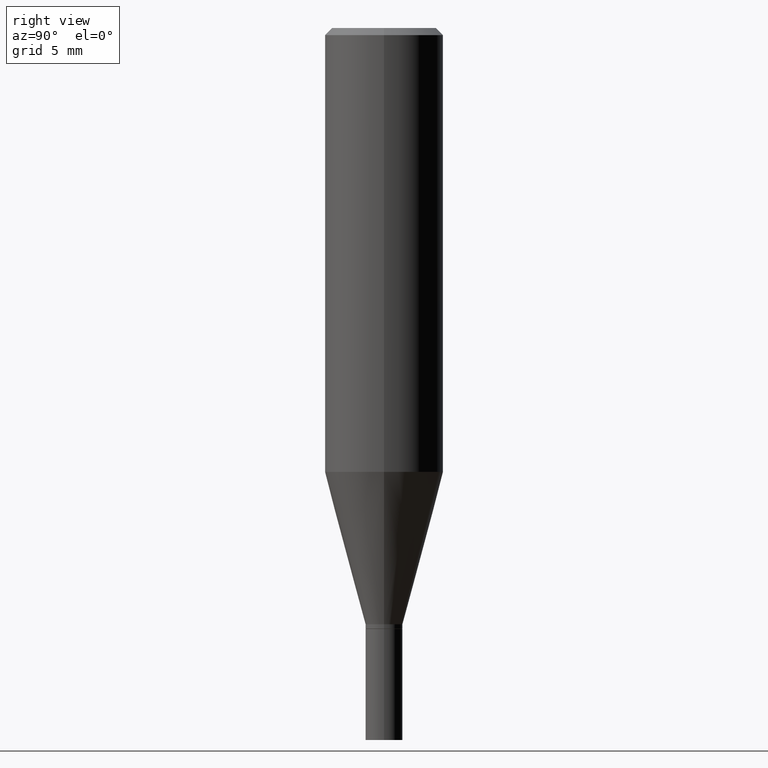
[diagram: clean part render]
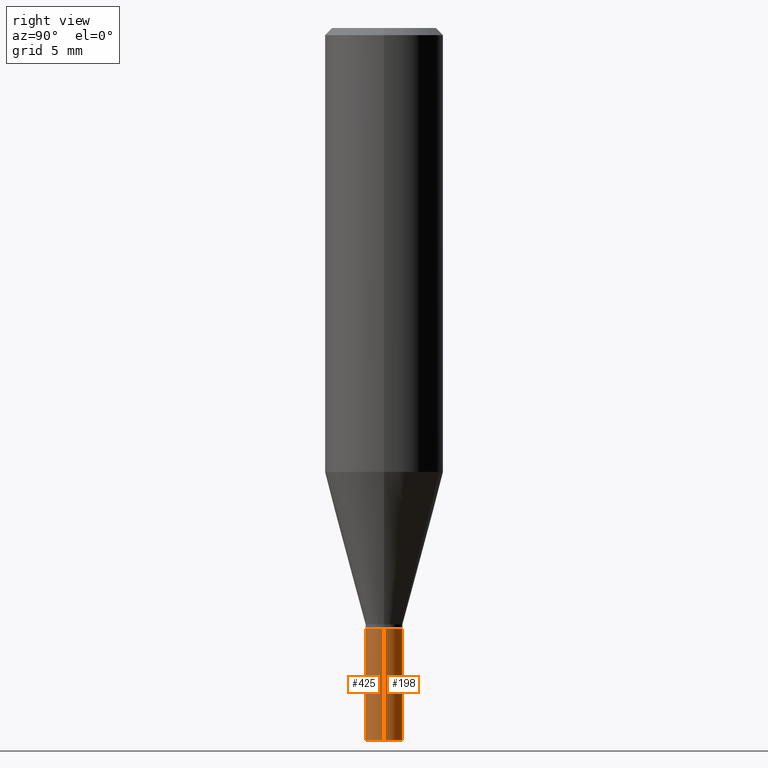
[diagram: same view with one multi-face feature highlighted, each face labeled with its STEP entity id]
A machine part, right view. The highlighted faces form ONE feature: a constant-radius fillet chain: 2 tangent blend faces with common blend radius 0.9919 mm. The faces share edges in the B-rep.
Their STEP definitions:
[1] entity #198 (Cylinder):
#5 = CARTESIAN_POINT ( 'NONE',  ( -0.03905000000000000138, -4.551251753305752024E-15, -1.500000000000000222 ) ) ;
#15 = DIRECTION ( 'NONE',  ( -2.445468806185136877E-29, 3.491481338843145188E-15, 1.000000000000000000 ) ) ;
#21 = VERTEX_POINT ( 'NONE', #78 ) ;
#42 = LINE ( 'NONE', #327, #53 ) ;
#52 = CARTESIAN_POINT ( 'NONE',  ( 0.03905000000000000138, -2.726846925636487182E-16, 1.904147030948312851E-30 ) ) ;
#53 = VECTOR ( 'NONE', #291, 39.37007874015748143 ) ;
#57 = DIRECTION ( 'NONE',  ( 1.000000000000000000, -6.982962677686266711E-15, 0.000000000000000000 ) ) ;
#66 = DIRECTION ( 'NONE',  ( -2.445468806185136597E-29, 3.491481338843145583E-15, 1.000000000000000000 ) ) ;
#78 = CARTESIAN_POINT ( 'NONE',  ( -0.03905000000000000138, -4.551251753305752024E-15, -1.266000000000000014 ) ) ;
#79 = EDGE_CURVE ( 'NONE', #159, #461, #249, .T. ) ;
#109 = CARTESIAN_POINT ( 'NONE',  ( 0.000000000000000000, 0.000000000000000000, 0.000000000000000000 ) ) ;
#120 = VERTEX_POINT ( 'NONE', #351 ) ;
#122 = CARTESIAN_POINT ( 'NONE',  ( 3.095963508630383106E-29, -4.420215374975422163E-15, -1.266000000000000014 ) ) ;
#125 = ORIENTED_EDGE ( 'NONE', *, *, #346, .F. ) ;
#154 = LINE ( 'NONE', #52, #250 ) ;
#159 = VERTEX_POINT ( 'NONE', #217 ) ;
#176 = DIRECTION ( 'NONE',  ( 1.000000000000000000, -6.982962677686266711E-15, 4.876176775795935232E-29 ) ) ;
#193 = ORIENTED_EDGE ( 'NONE', *, *, #398, .T. ) ;
#198 = ADVANCED_FACE ( 'NONE', ( #395 ), #322, .T. ) ;
#202 = DIRECTION ( 'NONE',  ( 1.000000000000000000, -6.982962677686266711E-15, 0.000000000000000000 ) ) ;
#217 = CARTESIAN_POINT ( 'NONE',  ( 0.03905000000000000138, -5.509906700828367289E-15, -1.500000000000000222 ) ) ;
#249 = CIRCLE ( 'NONE', #334, 0.03905000000000000138 ) ;
#250 = VECTOR ( 'NONE', #15, 39.37007874015748143 ) ;
#273 = AXIS2_PLACEMENT_3D ( 'NONE', #122, #329, #57 ) ;
#291 = DIRECTION ( 'NONE',  ( -2.445468806185136877E-29, 3.491481338843145188E-15, 1.000000000000000000 ) ) ;
#311 = EDGE_LOOP ( 'NONE', ( #320, #193, #125, #413 ) ) ;
#320 = ORIENTED_EDGE ( 'NONE', *, *, #79, .T. ) ;
#322 = CYLINDRICAL_SURFACE ( 'NONE', #444, 0.03905000000000000138 ) ;
#326 = CIRCLE ( 'NONE', #273, 0.03905000000000000138 ) ;
#327 = CARTESIAN_POINT ( 'NONE',  ( -0.03905000000000000138, 2.774669383143191324E-16, -1.920844152744540637E-30 ) ) ;
#329 = DIRECTION ( 'NONE',  ( -2.445468806185136597E-29, 3.491481338843145583E-15, 1.000000000000000000 ) ) ;
#332 = EDGE_CURVE ( 'NONE', #159, #120, #154, .T. ) ;
#334 = AXIS2_PLACEMENT_3D ( 'NONE', #419, #451, #202 ) ;
#346 = EDGE_CURVE ( 'NONE', #120, #21, #326, .T. ) ;
#351 = CARTESIAN_POINT ( 'NONE',  ( 0.03905000000000000138, -4.692900067539071276E-15, -1.266000000000000014 ) ) ;
#395 = FACE_OUTER_BOUND ( 'NONE', #311, .T. ) ;
#398 = EDGE_CURVE ( 'NONE', #461, #21, #42, .T. ) ;
#413 = ORIENTED_EDGE ( 'NONE', *, *, #332, .F. ) ;
#419 = CARTESIAN_POINT ( 'NONE',  ( 3.668203209277704895E-29, -5.237222008264718177E-15, -1.500000000000000222 ) ) ;
#444 = AXIS2_PLACEMENT_3D ( 'NONE', #109, #66, #176 ) ;
#451 = DIRECTION ( 'NONE',  ( -2.445468806185136597E-29, 3.491481338843145583E-15, 1.000000000000000000 ) ) ;
#461 = VERTEX_POINT ( 'NONE', #5 ) ;
[2] entity #425 (Cylinder):
#5 = CARTESIAN_POINT ( 'NONE',  ( -0.03905000000000000138, -4.551251753305752024E-15, -1.500000000000000222 ) ) ;
#11 = AXIS2_PLACEMENT_3D ( 'NONE', #381, #31, #238 ) ;
#15 = DIRECTION ( 'NONE',  ( -2.445468806185136877E-29, 3.491481338843145188E-15, 1.000000000000000000 ) ) ;
#19 = DIRECTION ( 'NONE',  ( -2.445468806185136597E-29, 3.491481338843145583E-15, 1.000000000000000000 ) ) ;
#21 = VERTEX_POINT ( 'NONE', #78 ) ;
#31 = DIRECTION ( 'NONE',  ( -2.445468806185136597E-29, 3.491481338843145583E-15, 1.000000000000000000 ) ) ;
#34 = ORIENTED_EDGE ( 'NONE', *, *, #453, .T. ) ;
#35 = AXIS2_PLACEMENT_3D ( 'NONE', #431, #108, #325 ) ;
#42 = LINE ( 'NONE', #327, #53 ) ;
#49 = EDGE_CURVE ( 'NONE', #21, #120, #400, .T. ) ;
#52 = CARTESIAN_POINT ( 'NONE',  ( 0.03905000000000000138, -2.726846925636487182E-16, 1.904147030948312851E-30 ) ) ;
#53 = VECTOR ( 'NONE', #291, 39.37007874015748143 ) ;
#58 = ORIENTED_EDGE ( 'NONE', *, *, #49, .F. ) ;
#78 = CARTESIAN_POINT ( 'NONE',  ( -0.03905000000000000138, -4.551251753305752024E-15, -1.266000000000000014 ) ) ;
#108 = DIRECTION ( 'NONE',  ( -2.445468806185136597E-29, 3.491481338843145583E-15, 1.000000000000000000 ) ) ;
#117 = FACE_OUTER_BOUND ( 'NONE', #436, .T. ) ;
#120 = VERTEX_POINT ( 'NONE', #351 ) ;
#154 = LINE ( 'NONE', #52, #250 ) ;
#159 = VERTEX_POINT ( 'NONE', #217 ) ;
#185 = CARTESIAN_POINT ( 'NONE',  ( 0.000000000000000000, 0.000000000000000000, 0.000000000000000000 ) ) ;
#217 = CARTESIAN_POINT ( 'NONE',  ( 0.03905000000000000138, -5.509906700828367289E-15, -1.500000000000000222 ) ) ;
#222 = CYLINDRICAL_SURFACE ( 'NONE', #430, 0.03905000000000000138 ) ;
#238 = DIRECTION ( 'NONE',  ( 1.000000000000000000, -6.982962677686266711E-15, 0.000000000000000000 ) ) ;
#250 = VECTOR ( 'NONE', #15, 39.37007874015748143 ) ;
#291 = DIRECTION ( 'NONE',  ( -2.445468806185136877E-29, 3.491481338843145188E-15, 1.000000000000000000 ) ) ;
#303 = ORIENTED_EDGE ( 'NONE', *, *, #332, .T. ) ;
#325 = DIRECTION ( 'NONE',  ( 1.000000000000000000, -6.982962677686266711E-15, 0.000000000000000000 ) ) ;
#327 = CARTESIAN_POINT ( 'NONE',  ( -0.03905000000000000138, 2.774669383143191324E-16, -1.920844152744540637E-30 ) ) ;
#328 = ORIENTED_EDGE ( 'NONE', *, *, #398, .F. ) ;
#332 = EDGE_CURVE ( 'NONE', #159, #120, #154, .T. ) ;
#351 = CARTESIAN_POINT ( 'NONE',  ( 0.03905000000000000138, -4.692900067539071276E-15, -1.266000000000000014 ) ) ;
#356 = CIRCLE ( 'NONE', #35, 0.03905000000000000138 ) ;
#381 = CARTESIAN_POINT ( 'NONE',  ( 3.095963508630383106E-29, -4.420215374975422163E-15, -1.266000000000000014 ) ) ;
#398 = EDGE_CURVE ( 'NONE', #461, #21, #42, .T. ) ;
#400 = CIRCLE ( 'NONE', #11, 0.03905000000000000138 ) ;
#425 = ADVANCED_FACE ( 'NONE', ( #117 ), #222, .T. ) ;
#430 = AXIS2_PLACEMENT_3D ( 'NONE', #185, #19, #462 ) ;
#431 = CARTESIAN_POINT ( 'NONE',  ( 3.668203209277704895E-29, -5.237222008264718177E-15, -1.500000000000000222 ) ) ;
#436 = EDGE_LOOP ( 'NONE', ( #328, #34, #303, #58 ) ) ;
#453 = EDGE_CURVE ( 'NONE', #461, #159, #356, .T. ) ;
#461 = VERTEX_POINT ( 'NONE', #5 ) ;
#462 = DIRECTION ( 'NONE',  ( 1.000000000000000000, -6.982962677686266711E-15, 4.876176775795935232E-29 ) ) ;